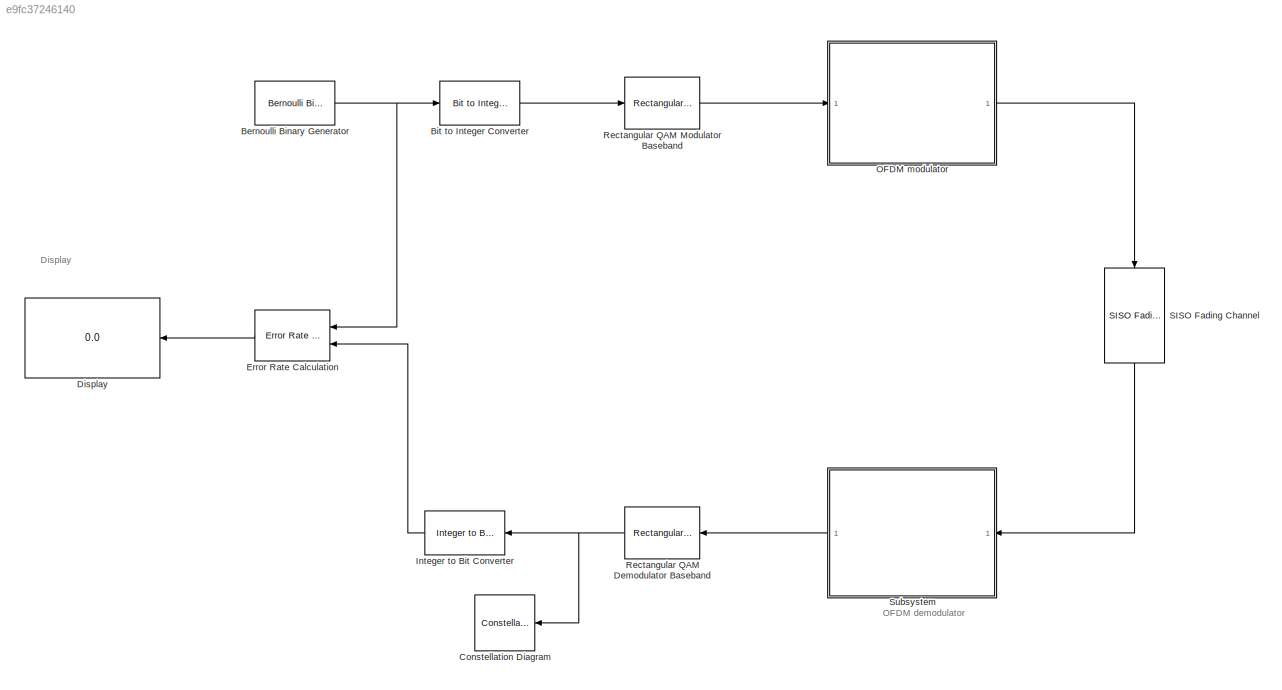
MODEL slx_e9fc37246140
KIND model
CONFIG AbsTol = auto
CONFIG EnableMultiTasking = off
CONFIG FixedStep = auto
CONFIG InitFcn = clear\n%frequency\nFs = 20e6;\nM =16;\n\nfD=1;\nTd=[0, 200, 300, 1300, 2700]*1e-09;\nPd=[0, -0.9, -3.9, -7.8, -13.9];
CONFIG MaxStep = auto
CONFIG MinStep = auto
CONFIG RelTol = 1e-3
CONFIG SampleTimeConstraint = Unconstrained
CONFIG SolverName = VariableStepAuto
CONFIG StartTime = 0.0
CONFIG StopTime = 1000.0
BLOCK [Reference] Bernoulli Binary Generator  REF=commrandsrc3/Bernoulli Binary
Generator
  Ports = [0, 1]
  SourceBlock = commrandsrc3/Bernoulli Binary\nGenerator
  SourceProductBaseCode = CM
  SourceType = Bernoulli Binary Generator
BLOCK [Reference] Bit to Integer Converter  REF=commutil2/Bit to Integer
Converter
  Ports = [1, 1]
  SourceBlock = commutil2/Bit to Integer\nConverter
  SourceProductBaseCode = CM
  SourceType = Bit to Integer Converter
BLOCK [ConstellationDiagram] Constellation Diagram
  NameLocation = top
  Ports = [1]
  ScopeSpecificationString = comm.scopes.ConstellationDiagramBlockCfg('CurrentConfiguration', extmgr.ConfigurationSet(extmgr.Configuration('Core','General UI',true),extmgr.Configuration('Core','Source UI',true),extmgr.Configuration('Sources','WiredSimulink',true),extmgr.Configuration('Visuals','Constellation',true,'AxesProperties',struct('Color',[0 0 0],'XColor',[0.686274509803922 0.686274509803922 0.686274509803922],'YColor'...<+702ch>
BLOCK [Display] Display
  Decimation = 1
  NameLocation = top
  Ports = [1]
BLOCK [Reference] Error Rate Calculation  REF=commsink2/Error Rate
Calculation
  NameLocation = top
  Ports = [2, 1]
  SourceBlock = commsink2/Error Rate\nCalculation
  SourceProductBaseCode = CM
  SourceType = Error Rate Calculation
BLOCK [Reference] Integer to Bit Converter  REF=commutil2/Integer to Bit
Converter
  NameLocation = top
  Ports = [1, 1]
  SourceBlock = commutil2/Integer to Bit\nConverter
  SourceProductBaseCode = CM
  SourceType = Integer to Bit Converter
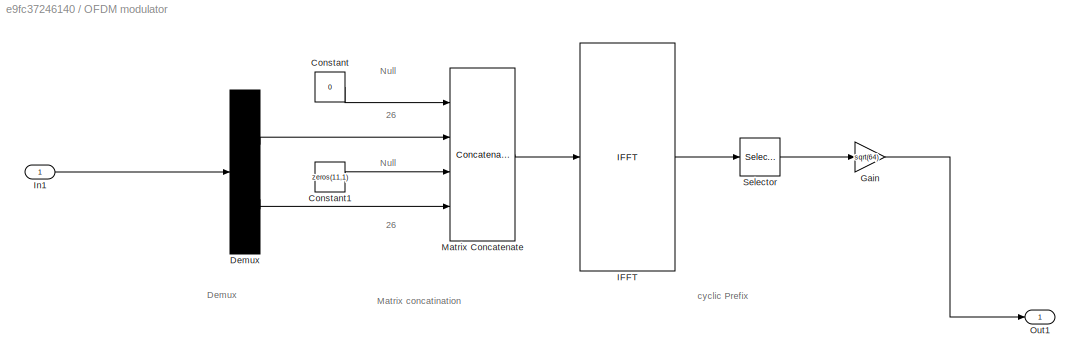
BLOCK [SubSystem] OFDM modulator
  Ports = [1, 1]
  RequestExecContextInheritance = off
BLOCK [Constant] OFDM modulator/Constant
  Value = 0
BLOCK [Constant] OFDM modulator/Constant1
  Value = zeros(11,1)
BLOCK [Demux] OFDM modulator/Demux
  Outputs = [26,26]
  Ports = [1, 2]
BLOCK [Gain] OFDM modulator/Gain
  Gain = sqrt(64)
BLOCK [Reference] OFDM modulator/IFFT  REF=dspxfrm3/IFFT
  Ports = [1, 1]
  SourceBlock = dspxfrm3/IFFT
  SourceProductBaseCode = DS
  SourceType = IFFT
BLOCK [Inport] OFDM modulator/In1
BLOCK [Concatenate] OFDM modulator/Matrix Concatenate
  Mode = Multidimensional array
  NumInputs = 4
  Ports = [4, 1]
BLOCK [Outport] OFDM modulator/Out1
BLOCK [Selector] OFDM modulator/Selector
  IndexOptions = Index vector (dialog)
  Indices = [49:64, 1: 64]
  InputPortWidth = 64
  OutputSizes = 1
  Ports = [1, 1]
BLOCK [Reference] Rectangular QAM Demodulator Baseband  REF=commdigbbndam3/Rectangular QAM
Demodulator
Baseband
  NameLocation = top
  Ports = [1, 1]
  SourceBlock = commdigbbndam3/Rectangular QAM\nDemodulator\nBaseband
  SourceProductBaseCode = CM
  SourceType = Rectangular QAM Demodulator Baseband
BLOCK [Reference] Rectangular QAM Modulator Baseband  REF=commdigbbndam3/Rectangular QAM
Modulator
Baseband
  Ports = [1, 1]
  SourceBlock = commdigbbndam3/Rectangular QAM\nModulator\nBaseband
  SourceProductBaseCode = CM
  SourceType = Rectangular QAM Modulator Baseband
BLOCK [Reference] SISO Fading Channel  REF=commchan3/SISO Fading Channel
  NameLocation = left
  Ports = [1, 1]
  SourceBlock = commchan3/SISO Fading Channel
  SourceProductBaseCode = CM
  SourceType = SISO Fading Channel
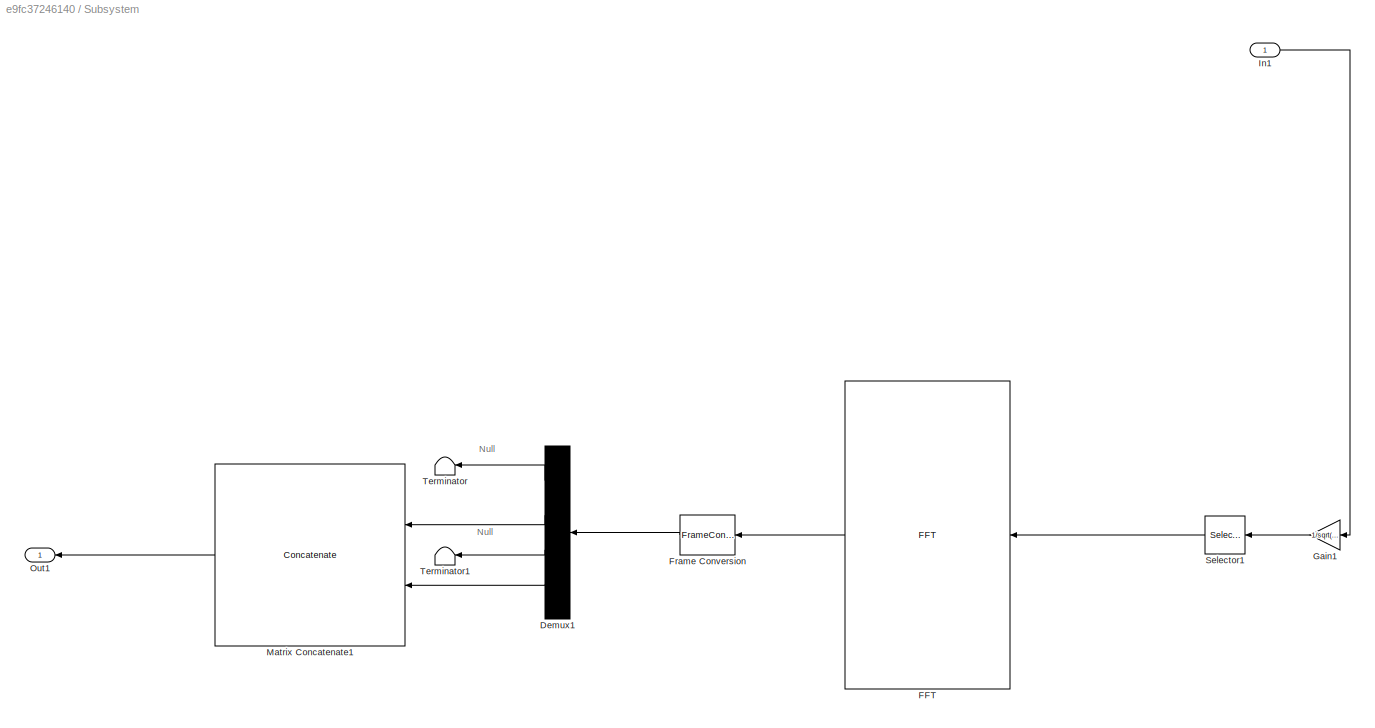
BLOCK [SubSystem] Subsystem
  NameLocation = top
  Ports = [1, 1]
  RequestExecContextInheritance = off
BLOCK [Demux] Subsystem/Demux1
  NameLocation = top
  Outputs = [1,26,11,26]
  Ports = [1, 4]
BLOCK [Reference] Subsystem/FFT  REF=dspxfrm3/FFT
  NameLocation = top
  Ports = [1, 1]
  SourceBlock = dspxfrm3/FFT
  SourceProductBaseCode = DS
  SourceType = FFT
BLOCK [FrameConversion] Subsystem/Frame Conversion
  NameLocation = top
  Ports = [1, 1]
BLOCK [Gain] Subsystem/Gain1
  Gain = 1/sqrt(64)
  NameLocation = top
BLOCK [Inport] Subsystem/In1
BLOCK [Concatenate] Subsystem/Matrix Concatenate1
  Mode = Multidimensional array
  NameLocation = top
  Ports = [2, 1]
BLOCK [Outport] Subsystem/Out1
BLOCK [Selector] Subsystem/Selector1
  IndexOptions = Index vector (dialog)
  Indices = [17:80]
  InputPortWidth = 80
  NameLocation = top
  OutputSizes = 1
  Ports = [1, 1]
BLOCK [Terminator] Subsystem/Terminator
  NameLocation = top
BLOCK [Terminator] Subsystem/Terminator1
  NameLocation = top
ANNOTATION (root): Display
ANNOTATION (root): OFDM demodulator
ANNOTATION OFDM modulator: 26
ANNOTATION OFDM modulator: cyclic Prefix
ANNOTATION OFDM modulator: Null
ANNOTATION OFDM modulator: Demux
ANNOTATION OFDM modulator: Matrix concatination
ANNOTATION Subsystem: Null
NET Bernoulli Binary Generator:1 -> Bit to Integer Converter:1, Error Rate Calculation:1
LINE Bit to Integer Converter:1 -> Rectangular QAM Modulator Baseband:1
LINE Error Rate Calculation:1 -> Display:1
LINE Integer to Bit Converter:1 -> Error Rate Calculation:2
LINE OFDM modulator/Constant1:1 -> OFDM modulator/Matrix Concatenate:3
LINE OFDM modulator/Constant:1 -> OFDM modulator/Matrix Concatenate:1
LINE OFDM modulator/Demux:1 -> OFDM modulator/Matrix Concatenate:2
LINE OFDM modulator/Demux:2 -> OFDM modulator/Matrix Concatenate:4
LINE OFDM modulator/Gain:1 -> OFDM modulator/Out1:1
LINE OFDM modulator/IFFT:1 -> OFDM modulator/Selector:1
LINE OFDM modulator/In1:1 -> OFDM modulator/Demux:1
LINE OFDM modulator/Matrix Concatenate:1 -> OFDM modulator/IFFT:1
LINE OFDM modulator/Selector:1 -> OFDM modulator/Gain:1
LINE OFDM modulator:1 -> SISO Fading Channel:1
NET Rectangular QAM Demodulator Baseband:1 -> Constellation Diagram:1, Integer to Bit Converter:1
LINE Rectangular QAM Modulator Baseband:1 -> OFDM modulator:1
LINE SISO Fading Channel:1 -> Subsystem:1
LINE Subsystem/Demux1:1 -> Subsystem/Terminator:1
LINE Subsystem/Demux1:2 -> Subsystem/Matrix Concatenate1:1
LINE Subsystem/Demux1:3 -> Subsystem/Terminator1:1
LINE Subsystem/Demux1:4 -> Subsystem/Matrix Concatenate1:2
LINE Subsystem/FFT:1 -> Subsystem/Frame Conversion:1
LINE Subsystem/Frame Conversion:1 -> Subsystem/Demux1:1
LINE Subsystem/Gain1:1 -> Subsystem/Selector1:1
LINE Subsystem/In1:1 -> Subsystem/Gain1:1
LINE Subsystem/Matrix Concatenate1:1 -> Subsystem/Out1:1
LINE Subsystem/Selector1:1 -> Subsystem/FFT:1
LINE Subsystem:1 -> Rectangular QAM Demodulator Baseband:1
note: NET lines group one-source signal fan-out (src -> all destinations, sorted); 1:1 wires keep LINE
